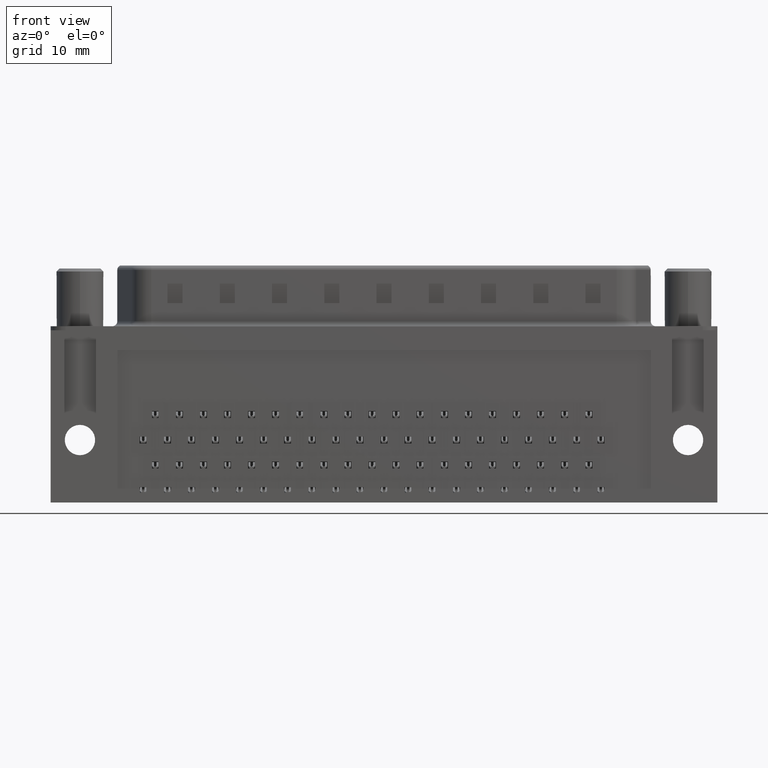
[diagram: clean part render]
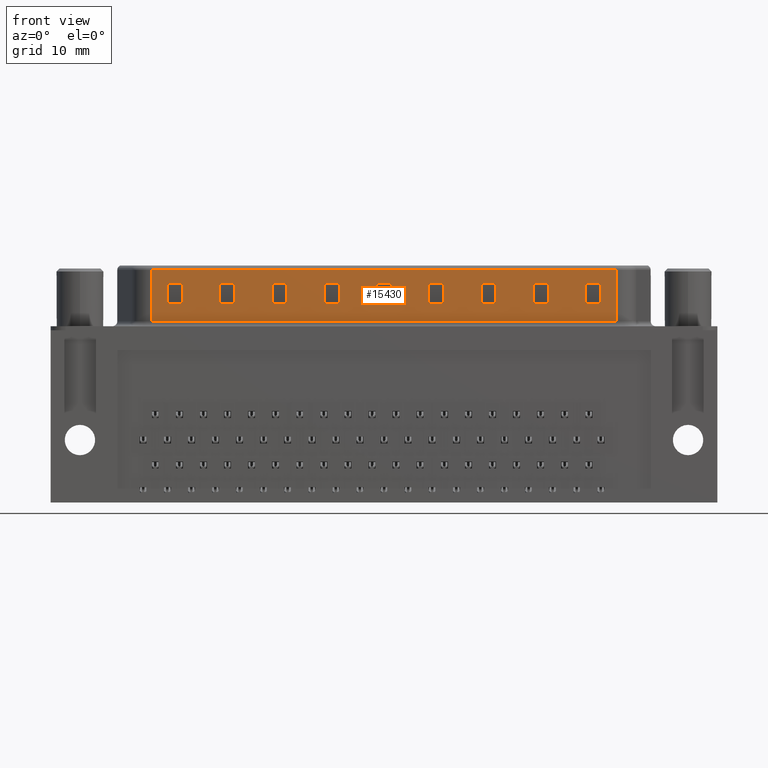
[diagram: same view with one face highlighted and labeled with its STEP entity id]
A machine part, front view. The second image highlights one B-rep face of the part: STEP entity #15430.
In plain terms, the highlighted planar face has unit normal (0, 1, 0).
Its self-contained STEP definition (entity closure, byte-faithful):
#213 = EDGE_CURVE ( 'NONE', #28107, #2868, #3989, .T. ) ;
#587 = VECTOR ( 'NONE', #25561, 1000.000000000000000 ) ;
#742 = VECTOR ( 'NONE', #30623, 1000.000000000000000 ) ;
#1040 = DIRECTION ( 'NONE',  ( -0.0000000000000000000, -0.0000000000000000000, -1.000000000000000000 ) ) ;
#1149 = DIRECTION ( 'NONE',  ( -0.0000000000000000000, -0.0000000000000000000, -1.000000000000000000 ) ) ;
#1364 = CARTESIAN_POINT ( 'NONE',  ( 64.42175145626148900, -6.049999999999998900, 4.719948974278312700 ) ) ;
#1779 = CARTESIAN_POINT ( 'NONE',  ( 40.30000000000000400, -6.049999999999998900, 6.550000000000000700 ) ) ;
#1889 = LINE ( 'NONE', #23249, #17795 ) ;
#2011 = CARTESIAN_POINT ( 'NONE',  ( 41.80000000000000400, -6.049999999999997200, 4.719948974278312700 ) ) ;
#2068 = ORIENTED_EDGE ( 'NONE', *, *, #10278, .T. ) ;
#2107 = ORIENTED_EDGE ( 'NONE', *, *, #2272, .T. ) ;
#2130 = DIRECTION ( 'NONE',  ( 1.000000000000000000, 0.0000000000000000000, 0.0000000000000000000 ) ) ;
#2175 = VECTOR ( 'NONE', #1040, 1000.000000000000000 ) ;
#2272 = EDGE_CURVE ( 'NONE', #27991, #5336, #1889, .T. ) ;
#2430 = LINE ( 'NONE', #38001, #26905 ) ;
#2599 = EDGE_CURVE ( 'NONE', #22363, #41113, #33310, .T. ) ;
#2868 = VERTEX_POINT ( 'NONE', #9753 ) ;
#2955 = CARTESIAN_POINT ( 'NONE',  ( 69.67175145626148900, -6.049999999999998900, 2.719948974278312700 ) ) ;
#2996 = VERTEX_POINT ( 'NONE', #25868 ) ;
#3220 = CARTESIAN_POINT ( 'NONE',  ( 10.29999999999999900, -6.049999999999997200, 4.719948974278312700 ) ) ;
#3236 = DIRECTION ( 'NONE',  ( 0.0000000000000000000, 0.0000000000000000000, 1.000000000000000000 ) ) ;
#3309 = LINE ( 'NONE', #1779, #11753 ) ;
#3456 = DIRECTION ( 'NONE',  ( 1.000000000000000000, 0.0000000000000000000, 0.0000000000000000000 ) ) ;
#3563 = VECTOR ( 'NONE', #14862, 1000.000000000000000 ) ;
#3645 = LINE ( 'NONE', #20237, #29139 ) ;
#3766 = CARTESIAN_POINT ( 'NONE',  ( 26.05000000000000100, -6.049999999999998900, 6.550000000000000700 ) ) ;
#3791 = VECTOR ( 'NONE', #31585, 1000.000000000000000 ) ;
#3867 = CARTESIAN_POINT ( 'NONE',  ( 47.05000000000000400, -6.049999999999997200, 4.719948974278312700 ) ) ;
#3945 = VECTOR ( 'NONE', #30421, 1000.000000000000000 ) ;
#3989 = LINE ( 'NONE', #2955, #3945 ) ;
#4248 = CARTESIAN_POINT ( 'NONE',  ( 69.67175145626148900, -6.049999999999998900, 4.719948974278312700 ) ) ;
#4257 = EDGE_CURVE ( 'NONE', #16083, #23151, #26997, .T. ) ;
#4397 = FACE_BOUND ( 'NONE', #34331, .T. ) ;
#4639 = LINE ( 'NONE', #29592, #36608 ) ;
#4754 = ORIENTED_EDGE ( 'NONE', *, *, #35061, .T. ) ;
#5061 = ORIENTED_EDGE ( 'NONE', *, *, #6582, .T. ) ;
#5131 = DIRECTION ( 'NONE',  ( 0.0000000000000000000, 1.000000000000000000, -0.0000000000000000000 ) ) ;
#5189 = VECTOR ( 'NONE', #36078, 1000.000000000000000 ) ;
#5256 = LINE ( 'NONE', #26522, #6217 ) ;
#5279 = CARTESIAN_POINT ( 'NONE',  ( 24.54999999999999700, -6.049999999999998900, 6.550000000000000700 ) ) ;
#5294 = LINE ( 'NONE', #1364, #38291 ) ;
#5302 = DIRECTION ( 'NONE',  ( 0.0000000000000000000, -0.0000000000000000000, -1.000000000000000000 ) ) ;
#5336 = VERTEX_POINT ( 'NONE', #31333 ) ;
#5392 = ORIENTED_EDGE ( 'NONE', *, *, #37870, .T. ) ;
#5429 = CARTESIAN_POINT ( 'NONE',  ( 50.79999999999999700, -6.049999999999998900, 2.719948974278312700 ) ) ;
#5908 = VERTEX_POINT ( 'NONE', #11299 ) ;
#6217 = VECTOR ( 'NONE', #7312, 1000.000000000000000 ) ;
#6249 = DIRECTION ( 'NONE',  ( 1.000000000000000000, 0.0000000000000000000, 0.0000000000000000000 ) ) ;
#6409 = VERTEX_POINT ( 'NONE', #13636 ) ;
#6582 = EDGE_CURVE ( 'NONE', #27376, #40738, #27054, .T. ) ;
#7280 = CARTESIAN_POINT ( 'NONE',  ( 38.17175145626148900, -6.049999999999998900, 4.719948974278312700 ) ) ;
#7312 = DIRECTION ( 'NONE',  ( -1.000000000000000000, 0.0000000000000000000, 0.0000000000000000000 ) ) ;
#7369 = CARTESIAN_POINT ( 'NONE',  ( 26.05000000000000100, -6.049999999999998900, 2.719948974278312700 ) ) ;
#7749 = AXIS2_PLACEMENT_3D ( 'NONE', #17770, #5131, #27481 ) ;
#7929 = VECTOR ( 'NONE', #33298, 1000.000000000000000 ) ;
#8003 = VECTOR ( 'NONE', #2130, 1000.000000000000000 ) ;
#8267 = VECTOR ( 'NONE', #14876, 1000.000000000000000 ) ;
#8297 = DIRECTION ( 'NONE',  ( 0.0000000000000000000, -0.0000000000000000000, -1.000000000000000000 ) ) ;
#8319 = CARTESIAN_POINT ( 'NONE',  ( 59.17175145626148900, -6.049999999999998900, 4.719948974278312700 ) ) ;
#8342 = ORIENTED_EDGE ( 'NONE', *, *, #18084, .T. ) ;
#9103 = VERTEX_POINT ( 'NONE', #28089 ) ;
#9292 = DIRECTION ( 'NONE',  ( 0.0000000000000000000, -0.0000000000000000000, -1.000000000000000000 ) ) ;
#9355 = CARTESIAN_POINT ( 'NONE',  ( 47.05000000000000400, -6.049999999999998900, 6.550000000000000700 ) ) ;
#9384 = VERTEX_POINT ( 'NONE', #17099 ) ;
#9387 = ORIENTED_EDGE ( 'NONE', *, *, #11327, .T. ) ;
#9753 = CARTESIAN_POINT ( 'NONE',  ( 45.54999999999999700, -6.049999999999998900, 2.719948974278312700 ) ) ;
#10050 = VECTOR ( 'NONE', #5302, 1000.000000000000000 ) ;
#10061 = EDGE_CURVE ( 'NONE', #26858, #14275, #5294, .T. ) ;
#10278 = EDGE_CURVE ( 'NONE', #36132, #9384, #23791, .T. ) ;
#10535 = VERTEX_POINT ( 'NONE', #20960 ) ;
#10642 = DIRECTION ( 'NONE',  ( 1.000000000000000000, 0.0000000000000000000, 0.0000000000000000000 ) ) ;
#10764 = CARTESIAN_POINT ( 'NONE',  ( 53.92175145626148900, -6.049999999999998900, 4.719948974278312700 ) ) ;
#10808 = EDGE_CURVE ( 'NONE', #35757, #24893, #39788, .T. ) ;
#10812 = CARTESIAN_POINT ( 'NONE',  ( 14.05000000000000100, -6.049999999999997200, 4.719948974278312700 ) ) ;
#10825 = ORIENTED_EDGE ( 'NONE', *, *, #33040, .T. ) ;
#11299 = CARTESIAN_POINT ( 'NONE',  ( 19.29999999999999700, -6.049999999999998900, 2.719948974278312700 ) ) ;
#11327 = EDGE_CURVE ( 'NONE', #10535, #2996, #37681, .T. ) ;
#11415 = CARTESIAN_POINT ( 'NONE',  ( 31.30000000000000100, -6.049999999999997200, 4.719948974278312700 ) ) ;
#11477 = ORIENTED_EDGE ( 'NONE', *, *, #12204, .F. ) ;
#11588 = EDGE_CURVE ( 'NONE', #5336, #17639, #28709, .T. ) ;
#11616 = LINE ( 'NONE', #13801, #2175 ) ;
#11670 = CARTESIAN_POINT ( 'NONE',  ( 15.55000000000000100, -6.049999999999998900, 6.550000000000000700 ) ) ;
#11753 = VECTOR ( 'NONE', #36801, 1000.000000000000000 ) ;
#11842 = FACE_OUTER_BOUND ( 'NONE', #29918, .T. ) ;
#11961 = LINE ( 'NONE', #36128, #20491 ) ;
#12163 = ORIENTED_EDGE ( 'NONE', *, *, #16705, .T. ) ;
#12172 = VECTOR ( 'NONE', #25926, 1000.000000000000000 ) ;
#12204 = EDGE_CURVE ( 'NONE', #39148, #9103, #11616, .T. ) ;
#12305 = ORIENTED_EDGE ( 'NONE', *, *, #10061, .T. ) ;
#12411 = CARTESIAN_POINT ( 'NONE',  ( 50.79999999999999700, -6.049999999999998900, 6.550000000000000700 ) ) ;
#12600 = ORIENTED_EDGE ( 'NONE', *, *, #33091, .T. ) ;
#12786 = CARTESIAN_POINT ( 'NONE',  ( 10.30000000000000400, -6.049999999999998900, 2.719948974278312700 ) ) ;
#12835 = FACE_BOUND ( 'NONE', #19441, .T. ) ;
#12840 = VERTEX_POINT ( 'NONE', #27525 ) ;
#12851 = ORIENTED_EDGE ( 'NONE', *, *, #11588, .T. ) ;
#12944 = DIRECTION ( 'NONE',  ( 1.000000000000000000, 0.0000000000000000000, 0.0000000000000000000 ) ) ;
#12948 = ORIENTED_EDGE ( 'NONE', *, *, #2599, .T. ) ;
#13348 = VERTEX_POINT ( 'NONE', #10812 ) ;
#13514 = VECTOR ( 'NONE', #37562, 1000.000000000000000 ) ;
#13636 = CARTESIAN_POINT ( 'NONE',  ( 24.54999999999999700, -6.049999999999998900, 2.719948974278312700 ) ) ;
#13741 = LINE ( 'NONE', #17589, #37267 ) ;
#13769 = LINE ( 'NONE', #3766, #22337 ) ;
#13801 = CARTESIAN_POINT ( 'NONE',  ( 53.92175145626148900, -6.049999999999998900, 6.550000000000000700 ) ) ;
#14028 = VERTEX_POINT ( 'NONE', #20170 ) ;
#14268 = DIRECTION ( 'NONE',  ( -1.000000000000000000, 0.0000000000000000000, 0.0000000000000000000 ) ) ;
#14275 = VERTEX_POINT ( 'NONE', #2011 ) ;
#14471 = CARTESIAN_POINT ( 'NONE',  ( 53.92175145626148900, -6.049999999999998900, 6.049999999999999800 ) ) ;
#14522 = CARTESIAN_POINT ( 'NONE',  ( 36.54999999999999700, -6.049999999999998900, 6.550000000000000700 ) ) ;
#14582 = CARTESIAN_POINT ( 'NONE',  ( 29.80000000000000100, -6.049999999999997200, 4.719948974278312700 ) ) ;
#14704 = VERTEX_POINT ( 'NONE', #36189 ) ;
#14755 = CARTESIAN_POINT ( 'NONE',  ( 32.92175145626148900, -6.049999999999998900, 4.719948974278312700 ) ) ;
#14768 = ORIENTED_EDGE ( 'NONE', *, *, #30135, .T. ) ;
#14862 = DIRECTION ( 'NONE',  ( 0.0000000000000000000, -0.0000000000000000000, -1.000000000000000000 ) ) ;
#14876 = DIRECTION ( 'NONE',  ( 0.0000000000000000000, 0.0000000000000000000, 1.000000000000000000 ) ) ;
#14905 = ORIENTED_EDGE ( 'NONE', *, *, #38185, .T. ) ;
#15091 = ORIENTED_EDGE ( 'NONE', *, *, #30731, .T. ) ;
#15224 = VECTOR ( 'NONE', #31160, 1000.000000000000000 ) ;
#15430 = ADVANCED_FACE ( 'NONE', ( #30859, #23388, #21364, #12835, #4397, #29895, #37342, #28886, #20367, #11842 ), #21055, .F. ) ;
#15733 = CARTESIAN_POINT ( 'NONE',  ( 45.54999999999999700, -6.049999999999998900, 6.550000000000000700 ) ) ;
#16079 = CARTESIAN_POINT ( 'NONE',  ( 50.79999999999999700, -6.049999999999997200, 4.719948974278312700 ) ) ;
#16083 = VERTEX_POINT ( 'NONE', #23819 ) ;
#16191 = ORIENTED_EDGE ( 'NONE', *, *, #33799, .T. ) ;
#16371 = EDGE_CURVE ( 'NONE', #2996, #14028, #16735, .T. ) ;
#16451 = CARTESIAN_POINT ( 'NONE',  ( 35.04999999999999700, -6.049999999999998900, 6.550000000000000700 ) ) ;
#16461 = EDGE_CURVE ( 'NONE', #5908, #29481, #13741, .T. ) ;
#16602 = ORIENTED_EDGE ( 'NONE', *, *, #4257, .T. ) ;
#16629 = EDGE_CURVE ( 'NONE', #14704, #9103, #32255, .T. ) ;
#16705 = EDGE_CURVE ( 'NONE', #41113, #36132, #21768, .T. ) ;
#16718 = EDGE_CURVE ( 'NONE', #37592, #38043, #29283, .T. ) ;
#16735 = LINE ( 'NONE', #16451, #41356 ) ;
#16876 = CARTESIAN_POINT ( 'NONE',  ( 14.05000000000000100, -6.049999999999998900, 6.550000000000000700 ) ) ;
#16923 = DIRECTION ( 'NONE',  ( 0.0000000000000000000, 0.0000000000000000000, 1.000000000000000000 ) ) ;
#16927 = CARTESIAN_POINT ( 'NONE',  ( 14.05000000000000100, -6.049999999999998900, 2.719948974278312700 ) ) ;
#17014 = EDGE_LOOP ( 'NONE', ( #33769, #2107, #12851, #16191 ) ) ;
#17099 = CARTESIAN_POINT ( 'NONE',  ( 8.799999999999998900, -6.049999999999998900, 2.719948974278312700 ) ) ;
#17382 = VERTEX_POINT ( 'NONE', #16927 ) ;
#17566 = CARTESIAN_POINT ( 'NONE',  ( 20.80000000000000100, -6.049999999999998900, 2.719948974278312700 ) ) ;
#17574 = ORIENTED_EDGE ( 'NONE', *, *, #16629, .T. ) ;
#17589 = CARTESIAN_POINT ( 'NONE',  ( 19.29999999999999700, -6.049999999999998900, 6.550000000000000700 ) ) ;
#17595 = LINE ( 'NONE', #24290, #36641 ) ;
#17639 = VERTEX_POINT ( 'NONE', #40471 ) ;
#17729 = VECTOR ( 'NONE', #10642, 1000.000000000000000 ) ;
#17770 = CARTESIAN_POINT ( 'NONE',  ( 53.92175145626148900, -6.049999999999998900, 6.550000000000000700 ) ) ;
#17795 = VECTOR ( 'NONE', #24434, 1000.000000000000000 ) ;
#17855 = ORIENTED_EDGE ( 'NONE', *, *, #18072, .T. ) ;
#17930 = EDGE_LOOP ( 'NONE', ( #25089, #16602, #15091, #12305 ) ) ;
#18072 = EDGE_CURVE ( 'NONE', #17382, #13348, #39197, .T. ) ;
#18084 = EDGE_CURVE ( 'NONE', #27819, #39685, #30674, .T. ) ;
#18097 = CARTESIAN_POINT ( 'NONE',  ( 47.05000000000000400, -6.049999999999998900, 2.719948974278312700 ) ) ;
#18538 = LINE ( 'NONE', #28534, #35562 ) ;
#18627 = ORIENTED_EDGE ( 'NONE', *, *, #34699, .T. ) ;
#18705 = CARTESIAN_POINT ( 'NONE',  ( 10.30000000000000100, -6.049999999999998900, 6.550000000000000700 ) ) ;
#18960 = LINE ( 'NONE', #14522, #34969 ) ;
#19269 = ORIENTED_EDGE ( 'NONE', *, *, #16718, .T. ) ;
#19441 = EDGE_LOOP ( 'NONE', ( #5392, #22628, #14768, #33746 ) ) ;
#19478 = ORIENTED_EDGE ( 'NONE', *, *, #33889, .T. ) ;
#19922 = VERTEX_POINT ( 'NONE', #30027 ) ;
#19985 = CARTESIAN_POINT ( 'NONE',  ( 40.30000000000000400, -6.049999999999997200, 4.719948974278312700 ) ) ;
#20170 = CARTESIAN_POINT ( 'NONE',  ( 35.04999999999999700, -6.049999999999997200, 4.719948974278312700 ) ) ;
#20237 = CARTESIAN_POINT ( 'NONE',  ( 7.178248543738504800, -6.049999999999999800, 6.550000000000000700 ) ) ;
#20367 = FACE_BOUND ( 'NONE', #17014, .T. ) ;
#20398 = ORIENTED_EDGE ( 'NONE', *, *, #32546, .T. ) ;
#20491 = VECTOR ( 'NONE', #16923, 1000.000000000000000 ) ;
#20763 = VECTOR ( 'NONE', #21950, 1000.000000000000000 ) ;
#20840 = VERTEX_POINT ( 'NONE', #36001 ) ;
#20956 = CARTESIAN_POINT ( 'NONE',  ( 8.799999999999998900, -6.049999999999997200, 4.719948974278312700 ) ) ;
#20960 = CARTESIAN_POINT ( 'NONE',  ( 36.54999999999999700, -6.049999999999998900, 2.719948974278312700 ) ) ;
#21055 = PLANE ( 'NONE',  #7749 ) ;
#21087 = EDGE_LOOP ( 'NONE', ( #22554, #19478, #19269, #18627 ) ) ;
#21183 = VECTOR ( 'NONE', #29812, 1000.000000000000000 ) ;
#21364 = FACE_BOUND ( 'NONE', #21087, .T. ) ;
#21768 = LINE ( 'NONE', #18705, #20763 ) ;
#21950 = DIRECTION ( 'NONE',  ( 0.0000000000000000000, -0.0000000000000000000, -1.000000000000000000 ) ) ;
#22235 = CARTESIAN_POINT ( 'NONE',  ( 19.29999999999999700, -6.049999999999997200, 4.719948974278312700 ) ) ;
#22251 = CARTESIAN_POINT ( 'NONE',  ( 24.54999999999999700, -6.049999999999997200, 4.719948974278312700 ) ) ;
#22337 = VECTOR ( 'NONE', #26101, 1000.000000000000000 ) ;
#22363 = VERTEX_POINT ( 'NONE', #20956 ) ;
#22368 = CARTESIAN_POINT ( 'NONE',  ( 38.17175145626148900, -6.049999999999998900, 2.719948974278312700 ) ) ;
#22554 = ORIENTED_EDGE ( 'NONE', *, *, #40370, .T. ) ;
#22589 = EDGE_LOOP ( 'NONE', ( #41466, #35965, #37060, #8342 ) ) ;
#22628 = ORIENTED_EDGE ( 'NONE', *, *, #22925, .T. ) ;
#22739 = CARTESIAN_POINT ( 'NONE',  ( 59.17175145626148900, -6.049999999999998900, 2.719948974278312700 ) ) ;
#22925 = EDGE_CURVE ( 'NONE', #40651, #6409, #5256, .T. ) ;
#23012 = VERTEX_POINT ( 'NONE', #39672 ) ;
#23151 = VERTEX_POINT ( 'NONE', #33731 ) ;
#23249 = CARTESIAN_POINT ( 'NONE',  ( 31.30000000000000100, -6.049999999999998900, 6.550000000000000700 ) ) ;
#23388 = FACE_BOUND ( 'NONE', #22589, .T. ) ;
#23391 = VECTOR ( 'NONE', #36849, 1000.000000000000000 ) ;
#23690 = EDGE_CURVE ( 'NONE', #36775, #27991, #31188, .T. ) ;
#23791 = LINE ( 'NONE', #29374, #39827 ) ;
#23819 = CARTESIAN_POINT ( 'NONE',  ( 41.80000000000000400, -6.049999999999998900, 2.719948974278312700 ) ) ;
#24068 = VECTOR ( 'NONE', #3236, 1000.000000000000000 ) ;
#24072 = DIRECTION ( 'NONE',  ( 0.0000000000000000000, -0.0000000000000000000, -1.000000000000000000 ) ) ;
#24290 = CARTESIAN_POINT ( 'NONE',  ( 41.80000000000000400, -6.049999999999998900, 6.550000000000000700 ) ) ;
#24434 = DIRECTION ( 'NONE',  ( 0.0000000000000000000, -0.0000000000000000000, -1.000000000000000000 ) ) ;
#24704 = VECTOR ( 'NONE', #33137, 1000.000000000000000 ) ;
#24849 = EDGE_CURVE ( 'NONE', #23012, #14704, #3645, .T. ) ;
#24893 = VERTEX_POINT ( 'NONE', #36297 ) ;
#24975 = LINE ( 'NONE', #30121, #7929 ) ;
#25089 = ORIENTED_EDGE ( 'NONE', *, *, #32080, .T. ) ;
#25320 = LINE ( 'NONE', #5279, #8267 ) ;
#25561 = DIRECTION ( 'NONE',  ( -1.000000000000000000, 0.0000000000000000000, 0.0000000000000000000 ) ) ;
#25868 = CARTESIAN_POINT ( 'NONE',  ( 35.04999999999999700, -6.049999999999998900, 2.719948974278312700 ) ) ;
#25926 = DIRECTION ( 'NONE',  ( -1.000000000000000000, 0.0000000000000000000, 0.0000000000000000000 ) ) ;
#26101 = DIRECTION ( 'NONE',  ( 0.0000000000000000000, -0.0000000000000000000, -1.000000000000000000 ) ) ;
#26231 = LINE ( 'NONE', #27401, #742 ) ;
#26366 = EDGE_CURVE ( 'NONE', #19922, #10535, #18960, .T. ) ;
#26368 = LINE ( 'NONE', #9355, #34840 ) ;
#26522 = CARTESIAN_POINT ( 'NONE',  ( 48.67175145626149700, -6.049999999999998900, 2.719948974278312700 ) ) ;
#26822 = CARTESIAN_POINT ( 'NONE',  ( 45.54999999999999700, -6.049999999999997200, 4.719948974278312700 ) ) ;
#26858 = VERTEX_POINT ( 'NONE', #19985 ) ;
#26905 = VECTOR ( 'NONE', #6249, 1000.000000000000000 ) ;
#26997 = LINE ( 'NONE', #28563, #34479 ) ;
#27054 = LINE ( 'NONE', #11670, #3563 ) ;
#27376 = VERTEX_POINT ( 'NONE', #27976 ) ;
#27401 = CARTESIAN_POINT ( 'NONE',  ( 43.42175145626148900, -6.049999999999998900, 2.719948974278312700 ) ) ;
#27481 = DIRECTION ( 'NONE',  ( 0.0000000000000000000, 0.0000000000000000000, 1.000000000000000000 ) ) ;
#27525 = CARTESIAN_POINT ( 'NONE',  ( 20.80000000000000100, -6.049999999999997200, 4.719948974278312700 ) ) ;
#27819 = VERTEX_POINT ( 'NONE', #26822 ) ;
#27968 = CARTESIAN_POINT ( 'NONE',  ( 53.92175145626148900, -6.049999999999998900, 0.8999999999999998000 ) ) ;
#27976 = CARTESIAN_POINT ( 'NONE',  ( 15.54999999999999900, -6.049999999999997200, 4.719948974278312700 ) ) ;
#27977 = EDGE_LOOP ( 'NONE', ( #33843, #9387, #38301, #28895 ) ) ;
#27991 = VERTEX_POINT ( 'NONE', #11415 ) ;
#28089 = CARTESIAN_POINT ( 'NONE',  ( 53.92175145626148900, -6.049999999999998900, 0.8999999999999998000 ) ) ;
#28107 = VERTEX_POINT ( 'NONE', #18097 ) ;
#28112 = LINE ( 'NONE', #37153, #10050 ) ;
#28534 = CARTESIAN_POINT ( 'NONE',  ( 20.80000000000000100, -6.049999999999998900, 6.550000000000000700 ) ) ;
#28563 = CARTESIAN_POINT ( 'NONE',  ( 64.42175145626148900, -6.049999999999998900, 2.719948974278312700 ) ) ;
#28709 = LINE ( 'NONE', #33429, #37164 ) ;
#28778 = DIRECTION ( 'NONE',  ( -1.000000000000000000, 0.0000000000000000000, 0.0000000000000000000 ) ) ;
#28886 = FACE_BOUND ( 'NONE', #27977, .T. ) ;
#28895 = ORIENTED_EDGE ( 'NONE', *, *, #40853, .T. ) ;
#29139 = VECTOR ( 'NONE', #1149, 1000.000000000000000 ) ;
#29188 = VERTEX_POINT ( 'NONE', #30351 ) ;
#29283 = LINE ( 'NONE', #12411, #3791 ) ;
#29374 = CARTESIAN_POINT ( 'NONE',  ( 32.92175145626148900, -6.049999999999998900, 2.719948974278312700 ) ) ;
#29481 = VERTEX_POINT ( 'NONE', #22235 ) ;
#29592 = CARTESIAN_POINT ( 'NONE',  ( 8.799999999999998900, -6.049999999999998900, 6.550000000000000700 ) ) ;
#29812 = DIRECTION ( 'NONE',  ( 1.000000000000000000, 0.0000000000000000000, 0.0000000000000000000 ) ) ;
#29895 = FACE_BOUND ( 'NONE', #35594, .T. ) ;
#29918 = EDGE_LOOP ( 'NONE', ( #11477, #4754, #40765, #17574 ) ) ;
#30027 = CARTESIAN_POINT ( 'NONE',  ( 36.54999999999999700, -6.049999999999997200, 4.719948974278312700 ) ) ;
#30121 = CARTESIAN_POINT ( 'NONE',  ( 74.92175145626148900, -6.049999999999998900, 2.719948974278312700 ) ) ;
#30135 = EDGE_CURVE ( 'NONE', #6409, #35757, #25320, .T. ) ;
#30351 = CARTESIAN_POINT ( 'NONE',  ( 52.29999999999999700, -6.049999999999997200, 4.719948974278312700 ) ) ;
#30421 = DIRECTION ( 'NONE',  ( -1.000000000000000000, 0.0000000000000000000, 0.0000000000000000000 ) ) ;
#30623 = DIRECTION ( 'NONE',  ( -1.000000000000000000, 0.0000000000000000000, 0.0000000000000000000 ) ) ;
#30674 = LINE ( 'NONE', #4248, #21183 ) ;
#30731 = EDGE_CURVE ( 'NONE', #23151, #26858, #3309, .T. ) ;
#30859 = FACE_BOUND ( 'NONE', #17930, .T. ) ;
#31160 = DIRECTION ( 'NONE',  ( 1.000000000000000000, -0.0000000000000000000, 0.0000000000000000000 ) ) ;
#31188 = LINE ( 'NONE', #10764, #24704 ) ;
#31333 = CARTESIAN_POINT ( 'NONE',  ( 31.30000000000000100, -6.049999999999998900, 2.719948974278312700 ) ) ;
#31344 = EDGE_LOOP ( 'NONE', ( #12163, #2068, #20398, #12948 ) ) ;
#31516 = EDGE_CURVE ( 'NONE', #40287, #5908, #26231, .T. ) ;
#31585 = DIRECTION ( 'NONE',  ( 0.0000000000000000000, 0.0000000000000000000, 1.000000000000000000 ) ) ;
#31770 = DIRECTION ( 'NONE',  ( 0.0000000000000000000, -0.0000000000000000000, -1.000000000000000000 ) ) ;
#31875 = LINE ( 'NONE', #14471, #23391 ) ;
#32080 = EDGE_CURVE ( 'NONE', #14275, #16083, #17595, .T. ) ;
#32255 = LINE ( 'NONE', #27968, #15224 ) ;
#32546 = EDGE_CURVE ( 'NONE', #9384, #22363, #4639, .T. ) ;
#32755 = DIRECTION ( 'NONE',  ( 0.0000000000000000000, 0.0000000000000000000, 1.000000000000000000 ) ) ;
#32819 = ORIENTED_EDGE ( 'NONE', *, *, #16461, .T. ) ;
#32932 = CARTESIAN_POINT ( 'NONE',  ( 53.92175145626148900, -6.049999999999998900, 6.049999999999999800 ) ) ;
#33040 = EDGE_CURVE ( 'NONE', #12840, #40287, #18538, .T. ) ;
#33091 = EDGE_CURVE ( 'NONE', #40738, #17382, #33534, .T. ) ;
#33103 = EDGE_CURVE ( 'NONE', #2868, #27819, #41124, .T. ) ;
#33137 = DIRECTION ( 'NONE',  ( 1.000000000000000000, 0.0000000000000000000, 0.0000000000000000000 ) ) ;
#33298 = DIRECTION ( 'NONE',  ( -1.000000000000000000, 0.0000000000000000000, 0.0000000000000000000 ) ) ;
#33310 = LINE ( 'NONE', #14755, #40873 ) ;
#33429 = CARTESIAN_POINT ( 'NONE',  ( 53.92175145626148900, -6.049999999999998900, 2.719948974278312700 ) ) ;
#33534 = LINE ( 'NONE', #22368, #587 ) ;
#33731 = CARTESIAN_POINT ( 'NONE',  ( 40.30000000000000400, -6.049999999999998900, 2.719948974278312700 ) ) ;
#33746 = ORIENTED_EDGE ( 'NONE', *, *, #10808, .T. ) ;
#33769 = ORIENTED_EDGE ( 'NONE', *, *, #23690, .T. ) ;
#33799 = EDGE_CURVE ( 'NONE', #17639, #36775, #11961, .T. ) ;
#33843 = ORIENTED_EDGE ( 'NONE', *, *, #26366, .T. ) ;
#33889 = EDGE_CURVE ( 'NONE', #20840, #37592, #24975, .T. ) ;
#34331 = EDGE_LOOP ( 'NONE', ( #10825, #39873, #32819, #35552 ) ) ;
#34345 = CARTESIAN_POINT ( 'NONE',  ( 43.42175145626148900, -6.049999999999998900, 4.719948974278312700 ) ) ;
#34479 = VECTOR ( 'NONE', #28778, 1000.000000000000000 ) ;
#34550 = LINE ( 'NONE', #8319, #8003 ) ;
#34699 = EDGE_CURVE ( 'NONE', #38043, #29188, #2430, .T. ) ;
#34773 = LINE ( 'NONE', #7280, #17729 ) ;
#34840 = VECTOR ( 'NONE', #31770, 1000.000000000000000 ) ;
#34969 = VECTOR ( 'NONE', #24072, 1000.000000000000000 ) ;
#35061 = EDGE_CURVE ( 'NONE', #39148, #23012, #31875, .T. ) ;
#35552 = ORIENTED_EDGE ( 'NONE', *, *, #40928, .T. ) ;
#35562 = VECTOR ( 'NONE', #9292, 1000.000000000000000 ) ;
#35594 = EDGE_LOOP ( 'NONE', ( #5061, #12600, #17855, #14905 ) ) ;
#35652 = DIRECTION ( 'NONE',  ( 0.0000000000000000000, 0.0000000000000000000, 1.000000000000000000 ) ) ;
#35757 = VERTEX_POINT ( 'NONE', #22251 ) ;
#35965 = ORIENTED_EDGE ( 'NONE', *, *, #213, .T. ) ;
#36001 = CARTESIAN_POINT ( 'NONE',  ( 52.29999999999999700, -6.049999999999998900, 2.719948974278312700 ) ) ;
#36078 = DIRECTION ( 'NONE',  ( 0.0000000000000000000, 0.0000000000000000000, 1.000000000000000000 ) ) ;
#36128 = CARTESIAN_POINT ( 'NONE',  ( 29.80000000000000100, -6.049999999999998900, 6.550000000000000700 ) ) ;
#36132 = VERTEX_POINT ( 'NONE', #12786 ) ;
#36189 = CARTESIAN_POINT ( 'NONE',  ( 7.178248543738504800, -6.049999999999999800, 0.8999999999999998000 ) ) ;
#36297 = CARTESIAN_POINT ( 'NONE',  ( 26.05000000000000100, -6.049999999999997200, 4.719948974278312700 ) ) ;
#36528 = DIRECTION ( 'NONE',  ( 1.000000000000000000, 0.0000000000000000000, 0.0000000000000000000 ) ) ;
#36608 = VECTOR ( 'NONE', #32755, 1000.000000000000000 ) ;
#36612 = EDGE_CURVE ( 'NONE', #39685, #28107, #26368, .T. ) ;
#36641 = VECTOR ( 'NONE', #8297, 1000.000000000000000 ) ;
#36734 = VECTOR ( 'NONE', #12944, 1000.000000000000000 ) ;
#36775 = VERTEX_POINT ( 'NONE', #14582 ) ;
#36801 = DIRECTION ( 'NONE',  ( 0.0000000000000000000, 0.0000000000000000000, 1.000000000000000000 ) ) ;
#36849 = DIRECTION ( 'NONE',  ( -1.000000000000000000, -0.0000000000000000000, -0.0000000000000000000 ) ) ;
#37060 = ORIENTED_EDGE ( 'NONE', *, *, #33103, .T. ) ;
#37153 = CARTESIAN_POINT ( 'NONE',  ( 52.29999999999999700, -6.049999999999998900, 6.550000000000000700 ) ) ;
#37164 = VECTOR ( 'NONE', #14268, 1000.000000000000000 ) ;
#37267 = VECTOR ( 'NONE', #39305, 1000.000000000000000 ) ;
#37342 = FACE_BOUND ( 'NONE', #31344, .T. ) ;
#37562 = DIRECTION ( 'NONE',  ( 1.000000000000000000, 0.0000000000000000000, 0.0000000000000000000 ) ) ;
#37592 = VERTEX_POINT ( 'NONE', #5429 ) ;
#37681 = LINE ( 'NONE', #22739, #12172 ) ;
#37870 = EDGE_CURVE ( 'NONE', #24893, #40651, #13769, .T. ) ;
#38001 = CARTESIAN_POINT ( 'NONE',  ( 74.92175145626148900, -6.049999999999998900, 4.719948974278312700 ) ) ;
#38043 = VERTEX_POINT ( 'NONE', #16079 ) ;
#38185 = EDGE_CURVE ( 'NONE', #13348, #27376, #34773, .T. ) ;
#38291 = VECTOR ( 'NONE', #36528, 1000.000000000000000 ) ;
#38301 = ORIENTED_EDGE ( 'NONE', *, *, #16371, .T. ) ;
#38548 = CARTESIAN_POINT ( 'NONE',  ( 48.67175145626149700, -6.049999999999998900, 4.719948974278312700 ) ) ;
#38727 = DIRECTION ( 'NONE',  ( -1.000000000000000000, 0.0000000000000000000, 0.0000000000000000000 ) ) ;
#39148 = VERTEX_POINT ( 'NONE', #32932 ) ;
#39197 = LINE ( 'NONE', #16876, #5189 ) ;
#39305 = DIRECTION ( 'NONE',  ( 0.0000000000000000000, 0.0000000000000000000, 1.000000000000000000 ) ) ;
#39672 = CARTESIAN_POINT ( 'NONE',  ( 7.178248543738504800, -6.049999999999999800, 6.049999999999999800 ) ) ;
#39685 = VERTEX_POINT ( 'NONE', #3867 ) ;
#39731 = CARTESIAN_POINT ( 'NONE',  ( 15.55000000000000100, -6.049999999999998900, 2.719948974278312700 ) ) ;
#39788 = LINE ( 'NONE', #38548, #36734 ) ;
#39827 = VECTOR ( 'NONE', #38727, 1000.000000000000000 ) ;
#39873 = ORIENTED_EDGE ( 'NONE', *, *, #31516, .T. ) ;
#40095 = LINE ( 'NONE', #34345, #13514 ) ;
#40287 = VERTEX_POINT ( 'NONE', #17566 ) ;
#40370 = EDGE_CURVE ( 'NONE', #29188, #20840, #28112, .T. ) ;
#40471 = CARTESIAN_POINT ( 'NONE',  ( 29.80000000000000100, -6.049999999999998900, 2.719948974278312700 ) ) ;
#40651 = VERTEX_POINT ( 'NONE', #7369 ) ;
#40738 = VERTEX_POINT ( 'NONE', #39731 ) ;
#40765 = ORIENTED_EDGE ( 'NONE', *, *, #24849, .T. ) ;
#40853 = EDGE_CURVE ( 'NONE', #14028, #19922, #34550, .T. ) ;
#40873 = VECTOR ( 'NONE', #3456, 1000.000000000000000 ) ;
#40928 = EDGE_CURVE ( 'NONE', #29481, #12840, #40095, .T. ) ;
#41113 = VERTEX_POINT ( 'NONE', #3220 ) ;
#41124 = LINE ( 'NONE', #15733, #24068 ) ;
#41356 = VECTOR ( 'NONE', #35652, 1000.000000000000000 ) ;
#41466 = ORIENTED_EDGE ( 'NONE', *, *, #36612, .T. ) ;